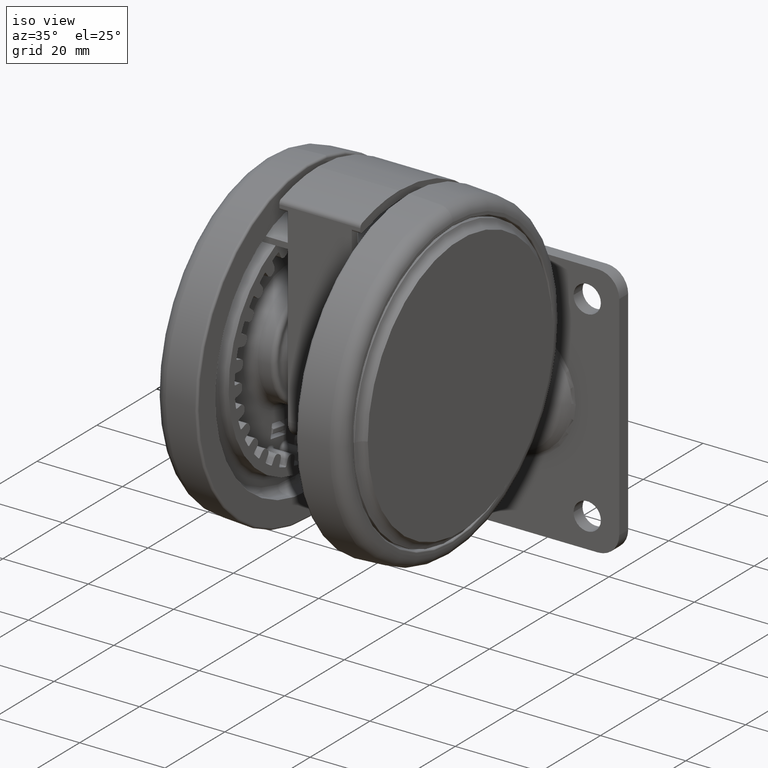
[diagram: clean part render]
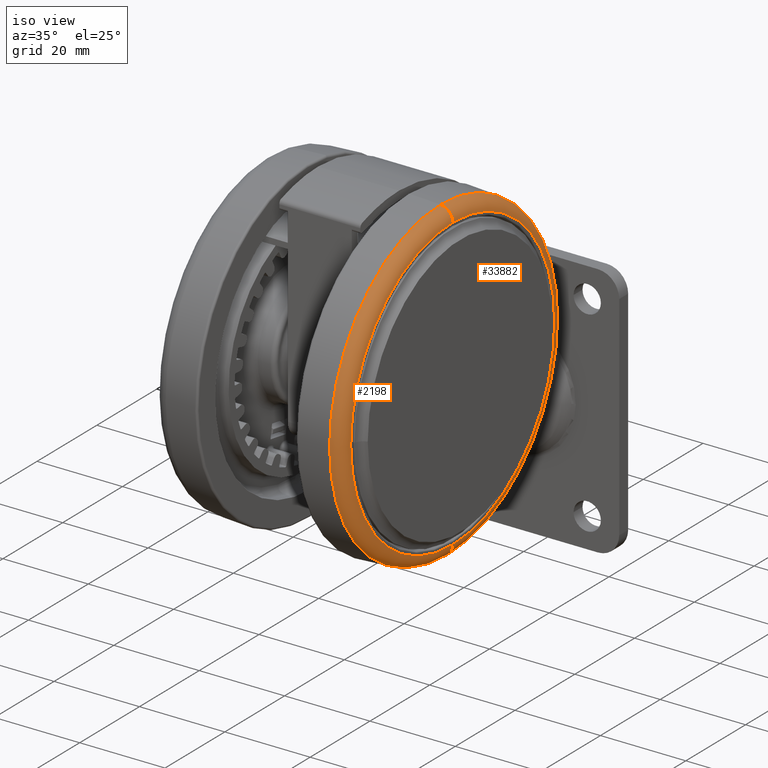
[diagram: same view with one multi-face feature highlighted, each face labeled with its STEP entity id]
A machine part, iso view. The highlighted faces form ONE feature: a constant-radius fillet chain: 2 tangent blend faces with common blend radius 3 mm. The faces share edges in the B-rep.
Their STEP definitions:
[1] entity #2198 (Torus):
#2198 = ADVANCED_FACE ( 'NONE', ( #26789 ), #50908, .T. ) ;
#4390 = CARTESIAN_POINT ( 'NONE',  ( 0.0000000000000000000, 3.469446951953614200E-014, -4.642992131271245900 ) ) ;
#8973 = DIRECTION ( 'NONE',  ( -3.275157922644210200E-015, 1.000000000000000000, 0.0000000000000000000 ) ) ;
#13543 = DIRECTION ( 'NONE',  ( -1.000000000000000000, -3.152693242729475100E-015, 0.0000000000000000000 ) ) ;
#15022 = EDGE_CURVE ( 'NONE', #15451, #39333, #51634, .T. ) ;
#15451 = VERTEX_POINT ( 'NONE', #16174 ) ;
#15918 = VERTEX_POINT ( 'NONE', #33199 ) ;
#16174 = CARTESIAN_POINT ( 'NONE',  ( -1.215944579745338600E-013, 37.12628851691042800, -4.642992131271245900 ) ) ;
#20841 = VERTEX_POINT ( 'NONE', #43240 ) ;
#22013 = DIRECTION ( 'NONE',  ( 1.000000000000000000, 3.275157922644210200E-015, -0.0000000000000000000 ) ) ;
#22161 = CIRCLE ( 'NONE', #25455, 37.12628851691039200 ) ;
#24906 = DIRECTION ( 'NONE',  ( -3.275157922644210200E-015, 1.000000000000000000, 0.0000000000000000000 ) ) ;
#25250 = CARTESIAN_POINT ( 'NONE',  ( 0.0000000000000000000, 3.469446951953614200E-014, -1.800000000000068900 ) ) ;
#25455 = AXIS2_PLACEMENT_3D ( 'NONE', #4390, #36183, #8973 ) ;
#26789 = FACE_OUTER_BOUND ( 'NONE', #26811, .T. ) ;
#26811 = EDGE_LOOP ( 'NONE', ( #43563, #43176, #34790, #41809 ) ) ;
#29819 = DIRECTION ( 'NONE',  ( -3.275157922644210200E-015, 1.000000000000000000, 0.0000000000000000000 ) ) ;
#33199 = CARTESIAN_POINT ( 'NONE',  ( 1.123252400555720600E-013, -34.13039991264664500, -1.800000000000068900 ) ) ;
#34790 = ORIENTED_EDGE ( 'NONE', *, *, #15022, .T. ) ;
#36183 = DIRECTION ( 'NONE',  ( 0.0000000000000000000, 0.0000000000000000000, 1.000000000000000000 ) ) ;
#37162 = AXIS2_PLACEMENT_3D ( 'NONE', #49166, #22013, #53761 ) ;
#39333 = VERTEX_POINT ( 'NONE', #45874 ) ;
#40773 = CARTESIAN_POINT ( 'NONE',  ( 1.076026811762558600E-013, -34.13039991264664500, -4.800000000000056700 ) ) ;
#41809 = ORIENTED_EDGE ( 'NONE', *, *, #42100, .F. ) ;
#42100 = EDGE_CURVE ( 'NONE', #15918, #39333, #43016, .T. ) ;
#42961 = DIRECTION ( 'NONE',  ( 0.0000000000000000000, 0.0000000000000000000, 1.000000000000000000 ) ) ;
#43016 = CIRCLE ( 'NONE', #50005, 34.13039991264668100 ) ;
#43176 = ORIENTED_EDGE ( 'NONE', *, *, #56722, .T. ) ;
#43240 = CARTESIAN_POINT ( 'NONE',  ( 1.170477989348882900E-013, -37.12628851691035700, -4.642992131271245900 ) ) ;
#43563 = ORIENTED_EDGE ( 'NONE', *, *, #52201, .F. ) ;
#44607 = AXIS2_PLACEMENT_3D ( 'NONE', #52068, #42961, #24906 ) ;
#45313 = DIRECTION ( 'NONE',  ( 3.152693242729476600E-015, -1.000000000000000000, 0.0000000000000000000 ) ) ;
#45874 = CARTESIAN_POINT ( 'NONE',  ( -1.117824496769200400E-013, 34.13039991264671600, -1.800000000000068900 ) ) ;
#49166 = CARTESIAN_POINT ( 'NONE',  ( -1.117824496769200400E-013, 34.13039991264671600, -4.800000000000056700 ) ) ;
#50005 = AXIS2_PLACEMENT_3D ( 'NONE', #25250, #57012, #29819 ) ;
#50885 = AXIS2_PLACEMENT_3D ( 'NONE', #40773, #13543, #45313 ) ;
#50908 = TOROIDAL_SURFACE ( 'NONE', #44607, 34.13039991264668100, 2.999999999999988000 ) ;
#51634 = CIRCLE ( 'NONE', #37162, 2.999999999999988900 ) ;
#52068 = CARTESIAN_POINT ( 'NONE',  ( 0.0000000000000000000, 3.469446951953614200E-014, -4.800000000000056700 ) ) ;
#52201 = EDGE_CURVE ( 'NONE', #20841, #15918, #55930, .T. ) ;
#53761 = DIRECTION ( 'NONE',  ( -3.275157922644208200E-015, 1.000000000000000000, 0.0000000000000000000 ) ) ;
#55930 = CIRCLE ( 'NONE', #50885, 2.999999999999988900 ) ;
#56722 = EDGE_CURVE ( 'NONE', #20841, #15451, #22161, .T. ) ;
#57012 = DIRECTION ( 'NONE',  ( 0.0000000000000000000, 0.0000000000000000000, 1.000000000000000000 ) ) ;
[2] entity #33882 (Torus):
#11145 = EDGE_LOOP ( 'NONE', ( #48274, #30919, #56068, #27887 ) ) ;
#12130 = CIRCLE ( 'NONE', #15175, 34.13039991264668100 ) ;
#13543 = DIRECTION ( 'NONE',  ( -1.000000000000000000, -3.152693242729475100E-015, 0.0000000000000000000 ) ) ;
#15022 = EDGE_CURVE ( 'NONE', #15451, #39333, #51634, .T. ) ;
#15175 = AXIS2_PLACEMENT_3D ( 'NONE', #43899, #16698, #48437 ) ;
#15451 = VERTEX_POINT ( 'NONE', #16174 ) ;
#15912 = AXIS2_PLACEMENT_3D ( 'NONE', #19929, #51658, #24509 ) ;
#15918 = VERTEX_POINT ( 'NONE', #33199 ) ;
#16174 = CARTESIAN_POINT ( 'NONE',  ( -1.215944579745338600E-013, 37.12628851691042800, -4.642992131271245900 ) ) ;
#16698 = DIRECTION ( 'NONE',  ( 0.0000000000000000000, 0.0000000000000000000, 1.000000000000000000 ) ) ;
#19929 = CARTESIAN_POINT ( 'NONE',  ( 0.0000000000000000000, 3.469446951953614200E-014, -4.642992131271245900 ) ) ;
#20841 = VERTEX_POINT ( 'NONE', #43240 ) ;
#22013 = DIRECTION ( 'NONE',  ( 1.000000000000000000, 3.275157922644210200E-015, -0.0000000000000000000 ) ) ;
#24509 = DIRECTION ( 'NONE',  ( -3.275157922644210200E-015, 1.000000000000000000, 0.0000000000000000000 ) ) ;
#27043 = CARTESIAN_POINT ( 'NONE',  ( 0.0000000000000000000, 3.469446951953614200E-014, -4.800000000000056700 ) ) ;
#27887 = ORIENTED_EDGE ( 'NONE', *, *, #15022, .F. ) ;
#30919 = ORIENTED_EDGE ( 'NONE', *, *, #52201, .T. ) ;
#32107 = AXIS2_PLACEMENT_3D ( 'NONE', #27043, #40745, #54430 ) ;
#33199 = CARTESIAN_POINT ( 'NONE',  ( 1.123252400555720600E-013, -34.13039991264664500, -1.800000000000068900 ) ) ;
#33882 = ADVANCED_FACE ( 'NONE', ( #52496 ), #40483, .T. ) ;
#37162 = AXIS2_PLACEMENT_3D ( 'NONE', #49166, #22013, #53761 ) ;
#39333 = VERTEX_POINT ( 'NONE', #45874 ) ;
#40483 = TOROIDAL_SURFACE ( 'NONE', #32107, 34.13039991264668100, 2.999999999999988000 ) ;
#40745 = DIRECTION ( 'NONE',  ( 0.0000000000000000000, 0.0000000000000000000, 1.000000000000000000 ) ) ;
#40773 = CARTESIAN_POINT ( 'NONE',  ( 1.076026811762558600E-013, -34.13039991264664500, -4.800000000000056700 ) ) ;
#43240 = CARTESIAN_POINT ( 'NONE',  ( 1.170477989348882900E-013, -37.12628851691035700, -4.642992131271245900 ) ) ;
#43899 = CARTESIAN_POINT ( 'NONE',  ( 0.0000000000000000000, 3.469446951953614200E-014, -1.800000000000068900 ) ) ;
#45313 = DIRECTION ( 'NONE',  ( 3.152693242729476600E-015, -1.000000000000000000, 0.0000000000000000000 ) ) ;
#45338 = EDGE_CURVE ( 'NONE', #15451, #20841, #58764, .T. ) ;
#45874 = CARTESIAN_POINT ( 'NONE',  ( -1.117824496769200400E-013, 34.13039991264671600, -1.800000000000068900 ) ) ;
#48274 = ORIENTED_EDGE ( 'NONE', *, *, #45338, .T. ) ;
#48437 = DIRECTION ( 'NONE',  ( -3.275157922644210200E-015, 1.000000000000000000, 0.0000000000000000000 ) ) ;
#49166 = CARTESIAN_POINT ( 'NONE',  ( -1.117824496769200400E-013, 34.13039991264671600, -4.800000000000056700 ) ) ;
#50885 = AXIS2_PLACEMENT_3D ( 'NONE', #40773, #13543, #45313 ) ;
#51634 = CIRCLE ( 'NONE', #37162, 2.999999999999988900 ) ;
#51658 = DIRECTION ( 'NONE',  ( 0.0000000000000000000, 0.0000000000000000000, 1.000000000000000000 ) ) ;
#52201 = EDGE_CURVE ( 'NONE', #20841, #15918, #55930, .T. ) ;
#52496 = FACE_OUTER_BOUND ( 'NONE', #11145, .T. ) ;
#53761 = DIRECTION ( 'NONE',  ( -3.275157922644208200E-015, 1.000000000000000000, 0.0000000000000000000 ) ) ;
#54430 = DIRECTION ( 'NONE',  ( -3.275157922644210200E-015, 1.000000000000000000, 0.0000000000000000000 ) ) ;
#55930 = CIRCLE ( 'NONE', #50885, 2.999999999999988900 ) ;
#56068 = ORIENTED_EDGE ( 'NONE', *, *, #56928, .F. ) ;
#56928 = EDGE_CURVE ( 'NONE', #39333, #15918, #12130, .T. ) ;
#58764 = CIRCLE ( 'NONE', #15912, 37.12628851691039200 ) ;